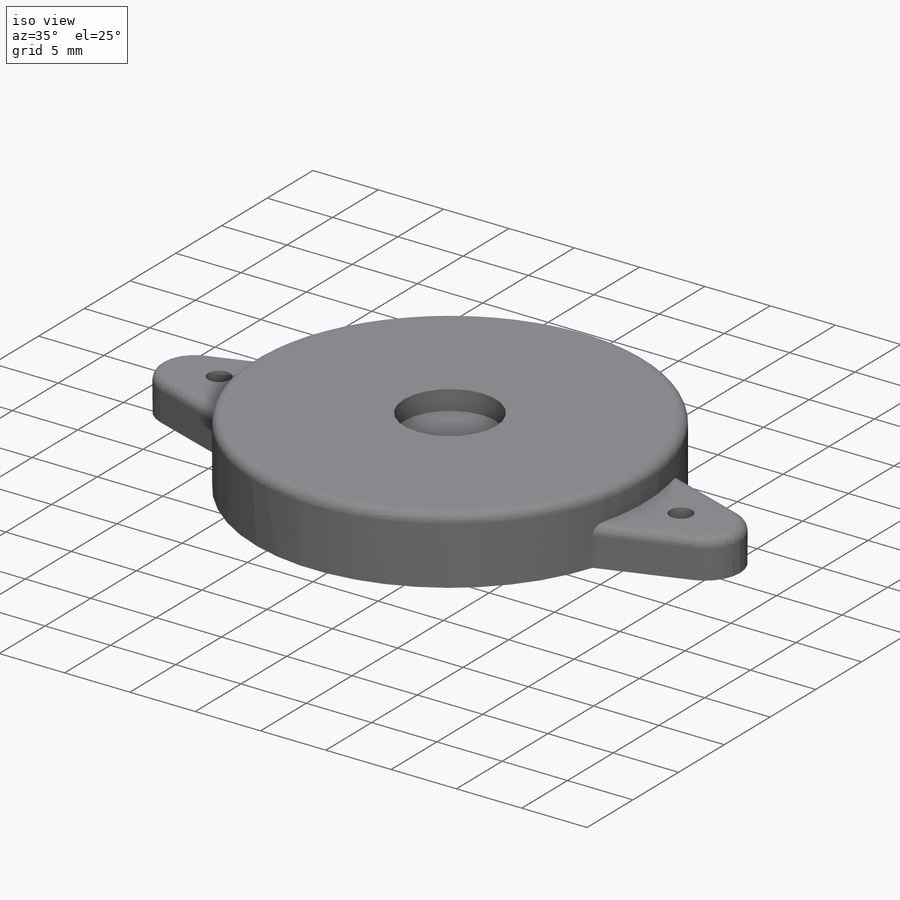
[diagram: iso view]
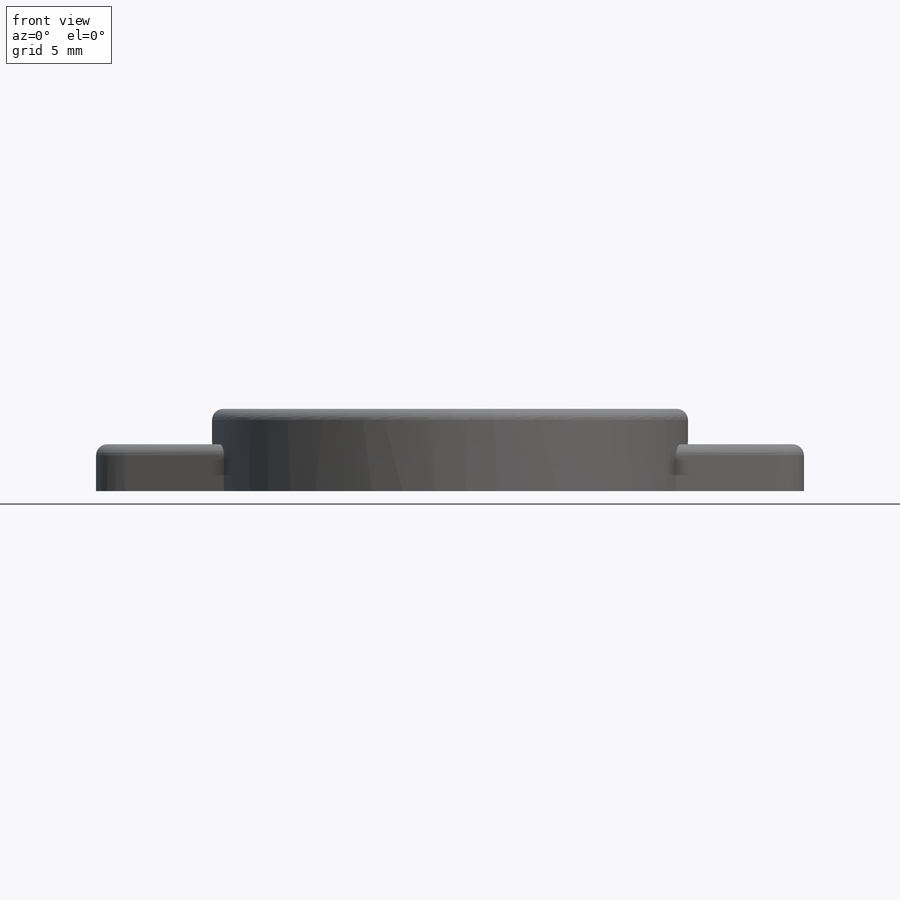
[diagram: front view]
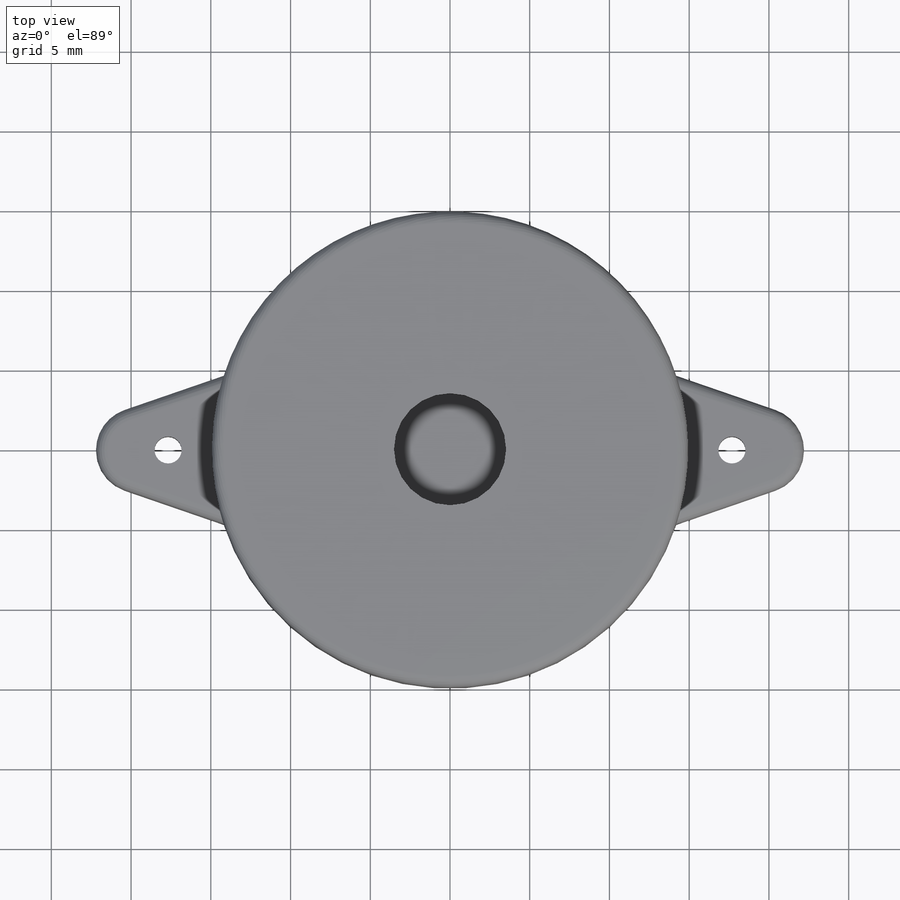
[diagram: top view]
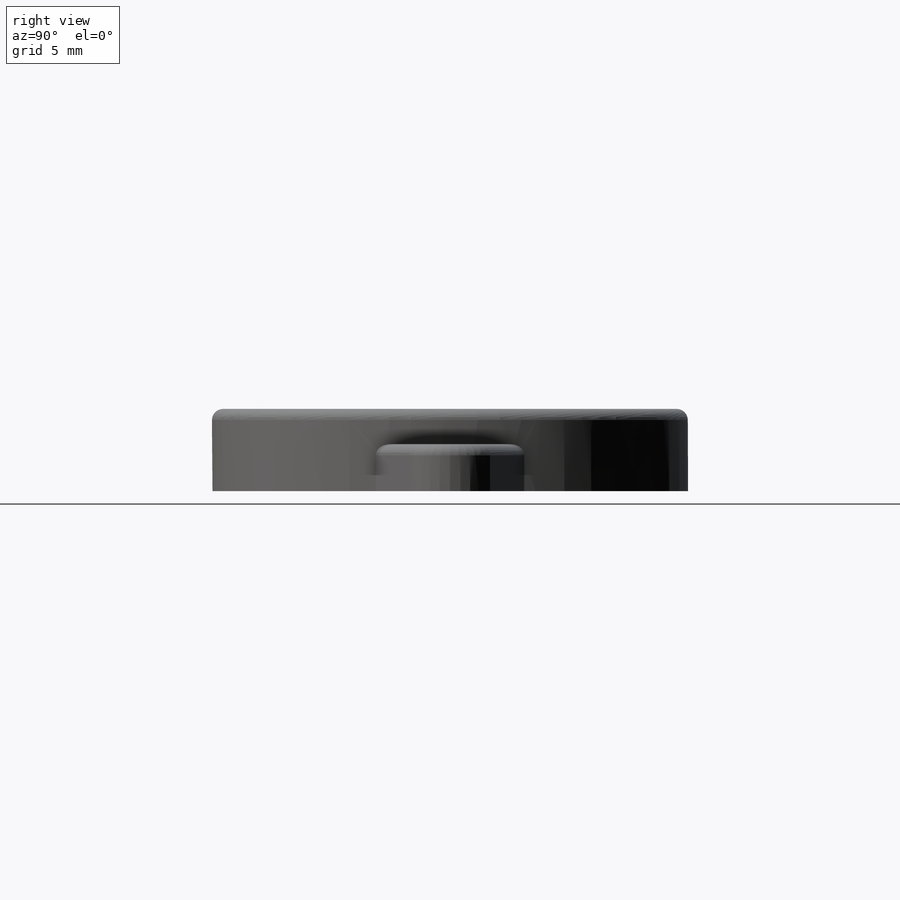
[diagram: right view]
SOLIDWORKS PART (.sldprt)
format: sldprt  version: not decoded by parser v0  size: 186,368 bytes
history: native  units: mm
features: sketch x3, extrude x2, fillet x2, material x1, cut_extrude x1 (+11 scaffold rows collapsed)
feature tree (20):
  scaffold x11  (default folders/planes/origin — collapsed)
  material  "Material <not specified>"
  sketch  "Sketch1"  dims[D1=29.86mm]
  extrude  "Boss-Extrude1"  Depth=5.16mm
  sketch  "Sketch2"  dims[c1.D1=1.8mm c1.D2=1.8mm c2.D1=22.2mm c2.D2=3.67mm]
  extrude  "Boss-Extrude2"  Depth=2.94mm
  fillet  "Fillet2"  Radius=0.7mm
  fillet  "Fillet4"  Radius=0.7mm
  sketch  "Sketch3"  dims[D1=7.03mm]
  cut_extrude  "Cut-Extrude1"  Depth=1.5mm
decode coverage: 8 of 8 modeling features carry decoded parameters
note: suppression state not decoded; provenance and decode notes live in map.json
